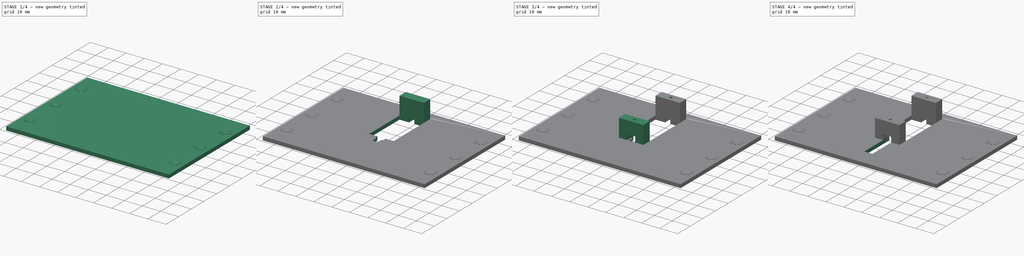
[diagram: build sequence overview — one tinted view per stage of 4, left to right]
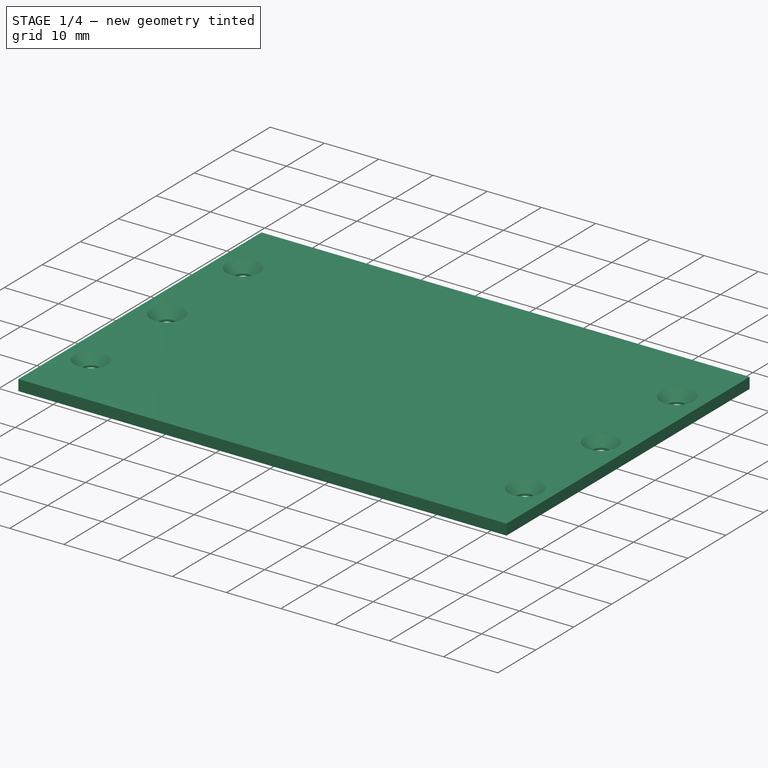
[diagram: stage 1 of 4 — iso view after this stage's code; geometry added in this stage tinted green]
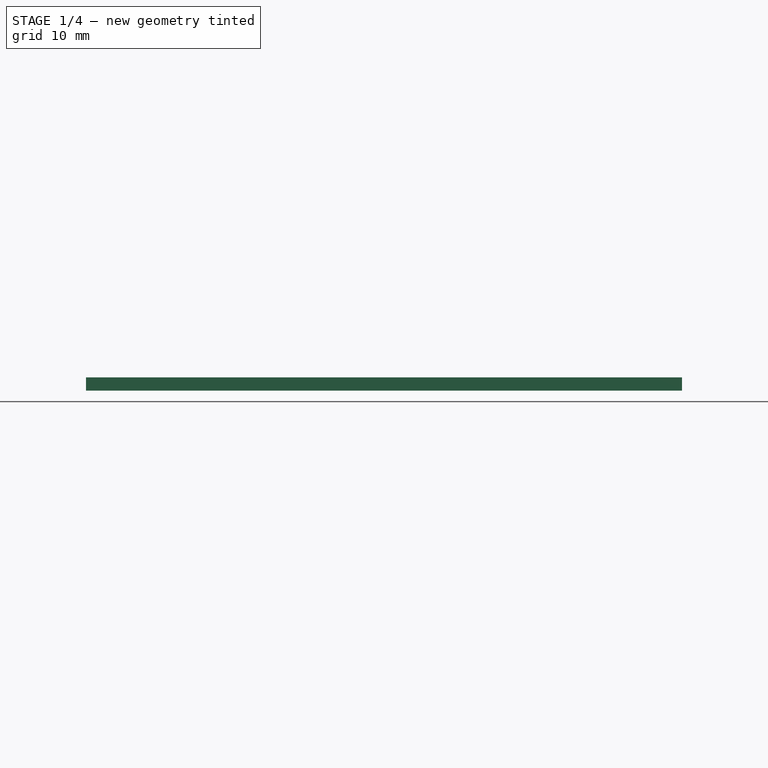
[diagram: stage 1 of 4 — front view after this stage's code; geometry added in this stage tinted green]
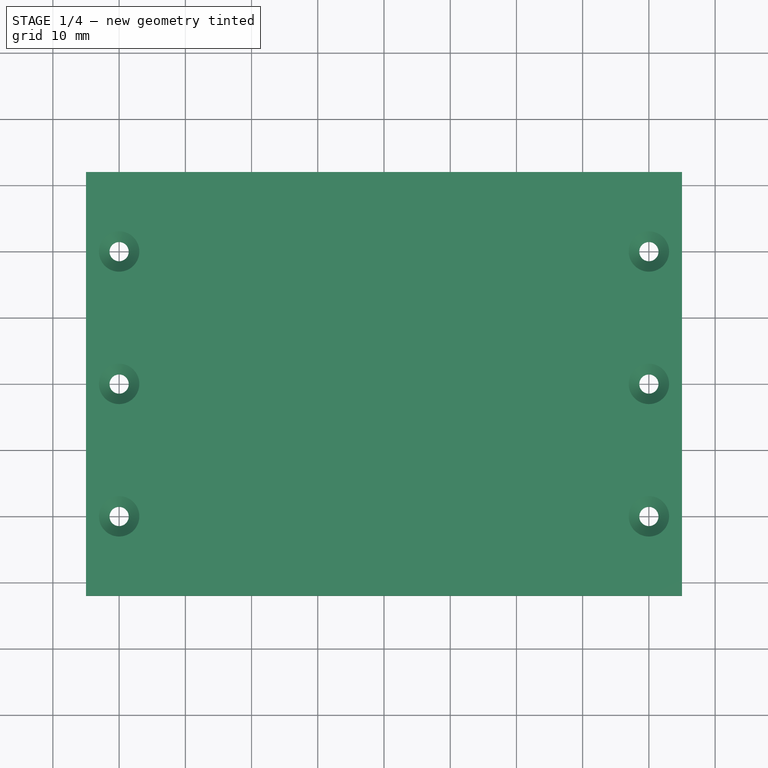
[diagram: stage 1 of 4 — top view after this stage's code; geometry added in this stage tinted green]
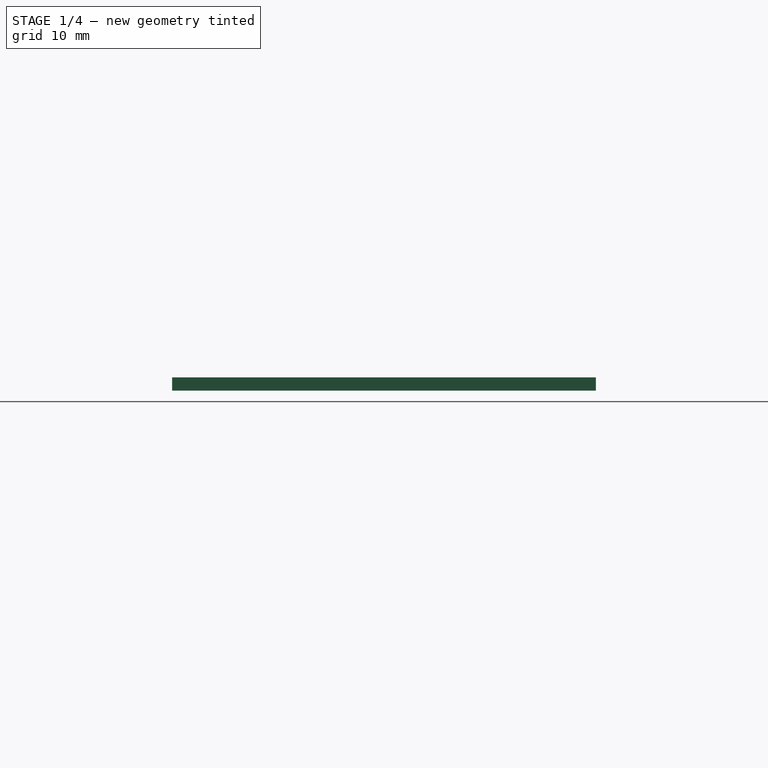
[diagram: stage 1 of 4 — right view after this stage's code; geometry added in this stage tinted green]
FCSTD DOCUMENT  (FreeCAD 0.21R33771 (Git))
Label: NerfPlate
License: All rights reserved
LicenseURL: http://en.wikipedia.org/wiki/All_rights_reserved
objects: Sketcher::SketchObject×8, PartDesign::Pad×3, PartDesign::Pocket×3, PartDesign::Hole×2, App::DocumentObjectGroupPython×1, App::Link×1, PartDesign::Fillet×1, PartDesign::Body×1
note: 27 computed .brp shape members not serialized (recipe doc carries the construction recipe); baked Part::Feature solids carry a one-line shape summary decoded from their .brp
EXTERNAL_REF file=attachment_mounting_plate.FCStd obj=Spreadsheet

FEATURE [App::DocumentObjectGroupPython] ExplodedAssembly  # scripted group (container) (typed FeaturePython)
  AnimationStep = 0
  CurrentTrajectory = 0
  InAnimation = false
  RemoveAllTrajectories = false
  ResetAnimation = false
FEATURE [App::Link] Link  label="attachment_sheet"
  LinkedObject = -> <external attachment_mounting_plate.FCStd>#Spreadsheet
FEATURE [Sketcher::SketchObject] Sketch  label="BasePlateSketch"
  FullyConstrained = true
  MapMode = 5
  Support = -> [XY_Plane]
  expr: Constraints[10] = <<attachment_sheet>>.plate_height
  expr: Constraints[9] = <<attachment_sheet>>.plate_width
  sketch-geometry (4):
    g0: LineSegment StartX=-45 StartY=32 StartZ=0 EndX=45 EndY=32 EndZ=0
    g1: LineSegment StartX=45 StartY=32 StartZ=0 EndX=45 EndY=-32 EndZ=0
    g2: LineSegment StartX=45 StartY=-32 StartZ=0 EndX=-45 EndY=-32 EndZ=0
    g3: LineSegment StartX=-45 StartY=-32 StartZ=0 EndX=-45 EndY=32 EndZ=0
  constraints (11):
    c: Coincident(g0,g1)
    c: Coincident(g1,g2)
    c: Coincident(g2,g3)
    c: Coincident(g3,g0)
    c: Horizontal(g0)
    c: Horizontal(g2)
    c: Vertical(g1)
    c: Vertical(g3)
    c: Symmetric(g0,g1,g-1)
    c: DistanceX(g0,g0) = 90
    c: DistanceY(g1,g1) = 64
FEATURE [PartDesign::Pad] Pad  label="Baseplate"
  Direction = (0,0,1)
  Length = 2
  Length2 = 10
  Profile = -> Sketch
  ReferenceAxis = -> Sketch [N_Axis]
  Type = 0
FEATURE [Sketcher::SketchObject] Sketch001  label="SideHolesSketch"
  FullyConstrained = true
  MapMode = 5
  Placement = pos=(0,0,2) rot=(0,0,1;0rad)
  Support = -> [Pad]
  expr: Constraints[4] = <<attachment_sheet>>.side_bolt_to_centre
  expr: Constraints[6] = <<attachment_sheet>>.side_bolt_distance
  sketch-geometry (12):
    g0: GeomPoint X=-40 Y=20 Z=0
    g1: GeomPoint X=-40 Y=0 Z=0
    g2: GeomPoint X=-40 Y=-20 Z=0
    g3: GeomPoint X=40 Y=20 Z=0
    g4: GeomPoint X=40 Y=0 Z=0
    g5: GeomPoint X=40 Y=-20 Z=0
    g6: Circle CenterX=-40 CenterY=20 CenterZ=0 NormalX=0 NormalY=0 NormalZ=1 AngleXU=0 Radius=1.25
    g7: Circle CenterX=-40 CenterY=0 CenterZ=0 NormalX=0 NormalY=0 NormalZ=1 AngleXU=0 Radius=1.25
    g8: Circle CenterX=-40 CenterY=-20 CenterZ=0 NormalX=0 NormalY=0 NormalZ=1 AngleXU=0 Radius=1.25
    g9: Circle CenterX=40 CenterY=20 CenterZ=0 NormalX=0 NormalY=0 NormalZ=1 AngleXU=0 Radius=1.25
    g10: Circle CenterX=40 CenterY=0 CenterZ=0 NormalX=0 NormalY=0 NormalZ=1 AngleXU=0 Radius=1.25
    g11: Circle CenterX=40 CenterY=-20 CenterZ=0 NormalX=0 NormalY=0 NormalZ=1 AngleXU=0 Radius=1.25
  constraints (20):
    c: PointOnObject(g4,g-1)
    c: Symmetric(g2,g0,g1)
    c: Symmetric(g5,g3,g4)
    c: Symmetric(g4,g1,g-1)
    c: DistanceX(g-1,g4) = 40
    c: Vertical(g5,g3)
    c: DistanceY(g5,g4) = 20
    c: Symmetric(g2,g5,g-2)
    c: Coincident(g6,g0)
    c: Coincident(g7,g1)
    c: Coincident(g8,g2)
    c: Coincident(g9,g3)
    c: Coincident(g10,g4)
    c: Coincident(g11,g5)
    c: Equal(g11,g10)
    c: Equal(g10,g9)
    c: Equal(g9,g6)
    c: Equal(g6,g7)
    c: Equal(g7,g8)
    c: Diameter(g10) = 2.5
FEATURE [PartDesign::Hole] Hole  label="SideHoles"
  BaseFeature = -> Pad
  CustomThreadClearance = 0
  Depth = 25
  DepthType = 0
  Diameter = 2.9
  DrillForDepth = false
  DrillPoint = 1
  DrillPointAngle = 118
  HoleCutCountersinkAngle = 90
  HoleCutCustomValues = false
  HoleCutDepth = 0
  HoleCutDiameter = 6.1
  HoleCutType = 2
  ModelThread = false
  Profile = -> Sketch001
  Tapered = false
  TaperedAngle = 90
  ThreadClass = 0
  ThreadDepth = 25
  ThreadDepthType = 0
  ThreadDirection = 0
  ThreadFit = 0
  ThreadSize = 8
  ThreadType = 1
  Threaded = false
  UseCustomThreadClearance = false
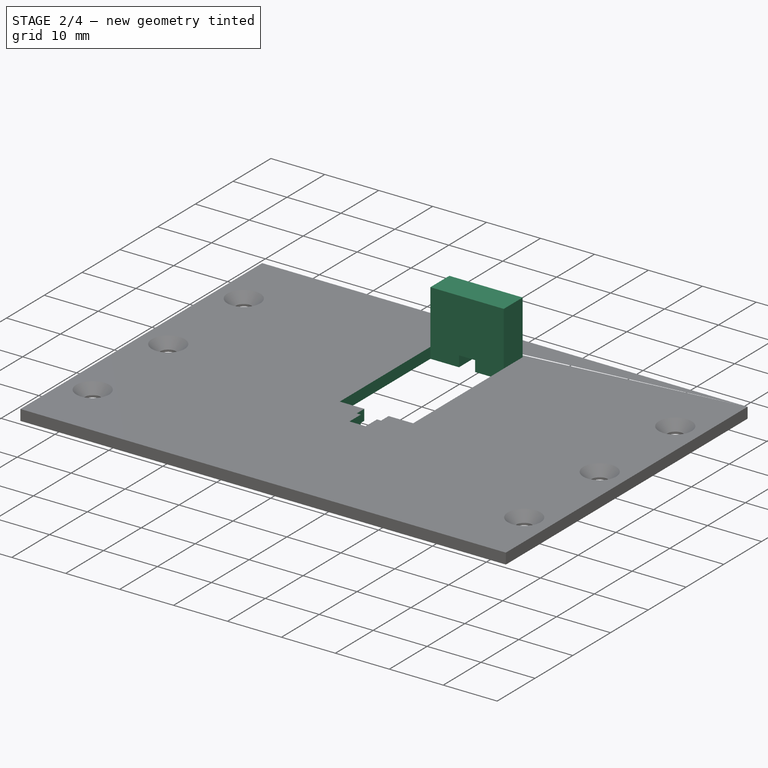
[diagram: stage 2 of 4 — iso view after this stage's code; geometry added in this stage tinted green]
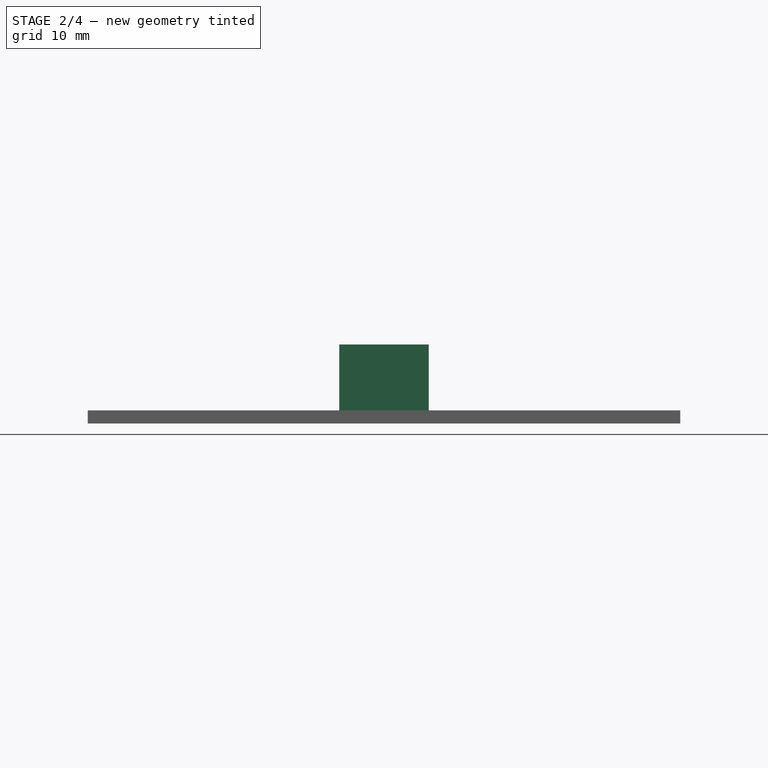
[diagram: stage 2 of 4 — front view after this stage's code; geometry added in this stage tinted green]
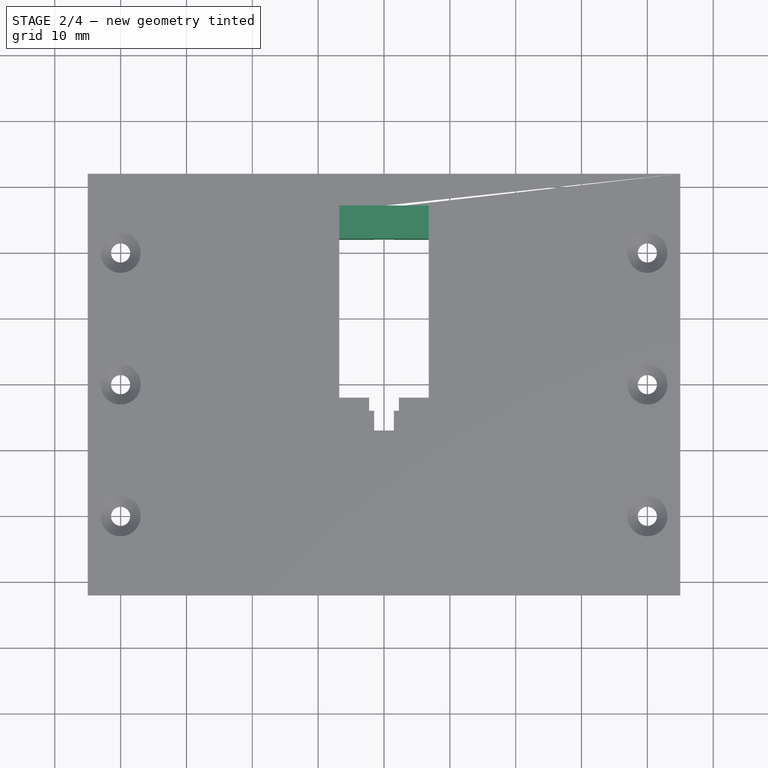
[diagram: stage 2 of 4 — top view after this stage's code; geometry added in this stage tinted green]
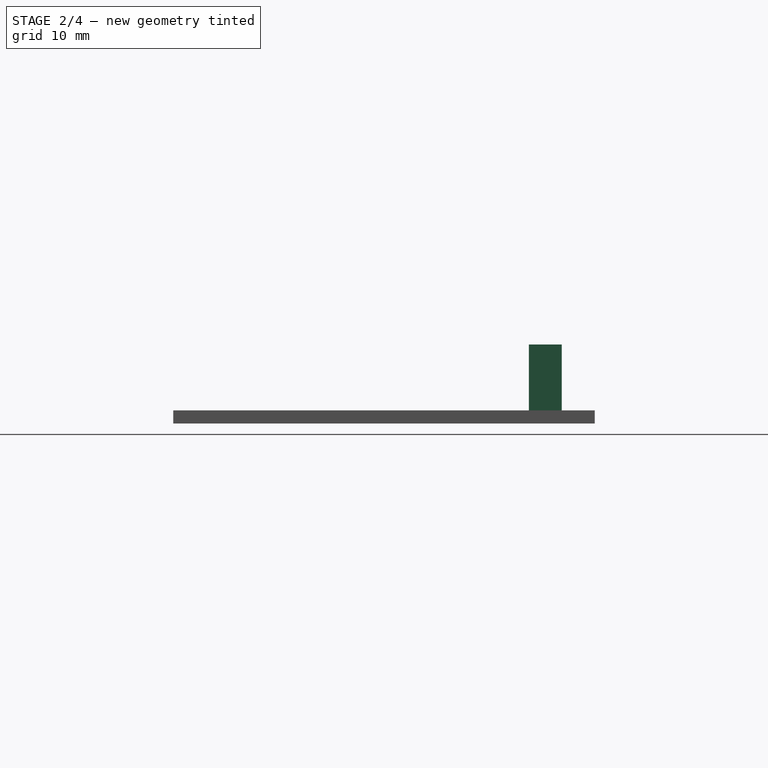
[diagram: stage 2 of 4 — right view after this stage's code; geometry added in this stage tinted green]
FEATURE [Sketcher::SketchObject] Sketch002  label="ServoPocketSketch"
  FullyConstrained = true
  MapMode = 5
  Placement = pos=(0,0,2) rot=(0,0,1;0rad)
  Support = -> [Hole]
  expr: Constraints[34] = <<attachment_sheet>>.servo_depth
  expr: Constraints[35] = <<attachment_sheet>>.servo_width
  expr: Constraints[37] = <<attachment_sheet>>.servo_tab_width
  expr: Constraints[38] = <<attachment_sheet>>.servo_tab_depth
  expr: Constraints[39] = <<attachment_sheet>>.servo_tab_depth
  expr: Constraints[40] = <<attachment_sheet>>.servo_motor_cable_width
  expr: Constraints[41] = <<attachment_sheet>>.servo_motor_cable_thickness
  sketch-geometry (16):
    g0: LineSegment StartX=-6.8 StartY=22 StartZ=0 EndX=-1.5 EndY=22 EndZ=0
    g1: LineSegment StartX=6.8 StartY=22 StartZ=0 EndX=6.8 EndY=-2 EndZ=0
    g2: LineSegment StartX=6.8 StartY=-2 StartZ=0 EndX=2.25 EndY=-2 EndZ=0
    g3: LineSegment StartX=-6.8 StartY=-2 StartZ=0 EndX=-6.8 EndY=22 EndZ=0
    g4: LineSegment StartX=2.25 StartY=-2 StartZ=0 EndX=2.25 EndY=-4 EndZ=0
    g5: LineSegment StartX=2.25 StartY=-4 StartZ=0 EndX=1.5 EndY=-4 EndZ=0
    g6: LineSegment StartX=-2.25 StartY=-4 StartZ=0 EndX=-2.25 EndY=-2 EndZ=0
    g7: LineSegment StartX=1.5 StartY=-4 StartZ=0 EndX=1.5 EndY=-7 EndZ=0
    g8: LineSegment StartX=1.5 StartY=-7 StartZ=0 EndX=-1.5 EndY=-7 EndZ=0
    g9: LineSegment StartX=-1.5 StartY=-7 StartZ=0 EndX=-1.5 EndY=-4 EndZ=0
    g10: LineSegment StartX=-1.5 StartY=-4 StartZ=0 EndX=-2.25 EndY=-4 EndZ=0
    g11: LineSegment StartX=-2.25 StartY=-2 StartZ=0 EndX=-6.8 EndY=-2 EndZ=0
    g12: LineSegment StartX=1.5 StartY=22 StartZ=0 EndX=1.5 EndY=27 EndZ=0
    g13: LineSegment StartX=1.5 StartY=27 StartZ=0 EndX=-1.5 EndY=27 EndZ=0
    g14: LineSegment StartX=-1.5 StartY=27 StartZ=0 EndX=-1.5 EndY=22 EndZ=0
    g15: LineSegment StartX=1.5 StartY=22 StartZ=0 EndX=6.8 EndY=22 EndZ=0
  constraints (43):
    c: Coincident(g15,g1)
    c: Coincident(g1,g2)
    c: Coincident(g11,g3)
    c: Coincident(g3,g0)
    c: Horizontal(g0)
    c: Horizontal(g2)
    c: Vertical(g1)
    c: Vertical(g3)
    c: Coincident(g4,g5)
    c: Coincident(g10,g6)
    c: Horizontal(g5)
    c: Vertical(g4)
    c: Vertical(g6)
    c: Coincident(g7,g8)
    c: Coincident(g8,g9)
    c: Horizontal(g8)
    c: Vertical(g7)
    c: Vertical(g9)
    c: Coincident(g12,g13)
    c: Coincident(g13,g14)
    c: Horizontal(g13)
    c: Vertical(g12)
    c: Symmetric(g1,g0,g-2)
    c: Coincident(g6,g11)
    c: Horizontal(g11)
    c: Horizontal(g6,g2)
    c: Coincident(g2,g4)
    c: Coincident(g5,g7)
    c: Coincident(g10,g9)
    c: Symmetric(g5,g9,g-2)
    c: Symmetric(g4,g6,g-2)
    c: Coincident(g14,g0)
    c: Coincident(g12,g15)
    c: Symmetric(g0,g12,g-2)
    c: DistanceY(g3,g3) = 24
    c: DistanceX(g0,g1) = 13.6
    c: Tangent(g14,g9)
    c: DistanceX(g13,g13) = 3
    c: DistanceY(g14,g14) = 5
    c: DistanceY(g8,g3) = 5
    c: DistanceX(g6,g2) = 4.5
    c: DistanceY(g4,g4) = 2
    c: DistanceY(g-1,g0) = 22
FEATURE [PartDesign::Pocket] Pocket  label="ServoPocket"
  BaseFeature = -> Hole
  Direction = (0,0,-1)
  Length = 5
  Length2 = 5
  Profile = -> Sketch002
  ReferenceAxis = -> Sketch002 [N_Axis]
  Type = 1
FEATURE [Sketcher::SketchObject] Sketch003  label="ServoRearSupportSketch"
  ExternalGeometry = -> [Pocket]
  FullyConstrained = true
  MapMode = 5
  Placement = pos=(0,0,2) rot=(0,0,1;0rad)
  Support = -> [Pocket]
  sketch-geometry (4):
    g0: LineSegment StartX=-6.8 StartY=22 StartZ=0 EndX=6.8 EndY=22 EndZ=0
    g1: LineSegment StartX=6.8 StartY=22 StartZ=0 EndX=6.8 EndY=27 EndZ=0
    g2: LineSegment StartX=6.8 StartY=27 StartZ=0 EndX=-6.8 EndY=27 EndZ=0
    g3: LineSegment StartX=-6.8 StartY=27 StartZ=0 EndX=-6.8 EndY=22 EndZ=0
  constraints (10):
    c: Coincident(g0,g1)
    c: Coincident(g1,g2)
    c: Coincident(g2,g3)
    c: Coincident(g3,g0)
    c: Horizontal(g0)
    c: Horizontal(g2)
    c: Vertical(g3)
    c: Coincident(g0,g-3)
    c: Tangent(g1,g-4)
    c: DistanceY(g3,g3) = 5
FEATURE [PartDesign::Pad] Pad001  label="ServoRearSupport"
  BaseFeature = -> Pocket
  Direction = (0,0,1)
  Length = 10
  Length2 = 10
  Profile = -> Sketch003
  ReferenceAxis = -> Sketch003 [N_Axis]
  Refine = true
  Type = 0
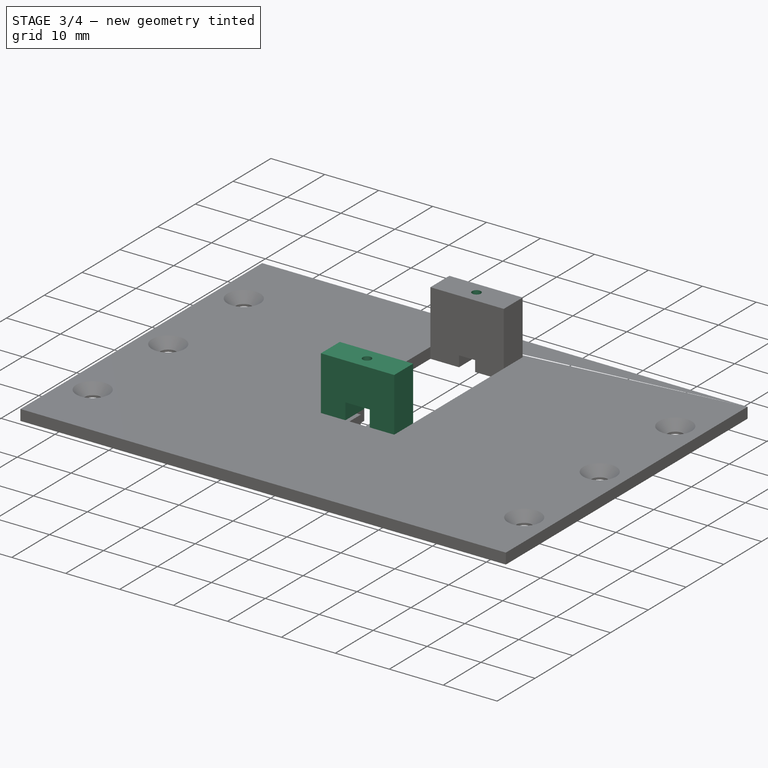
[diagram: stage 3 of 4 — iso view after this stage's code; geometry added in this stage tinted green]
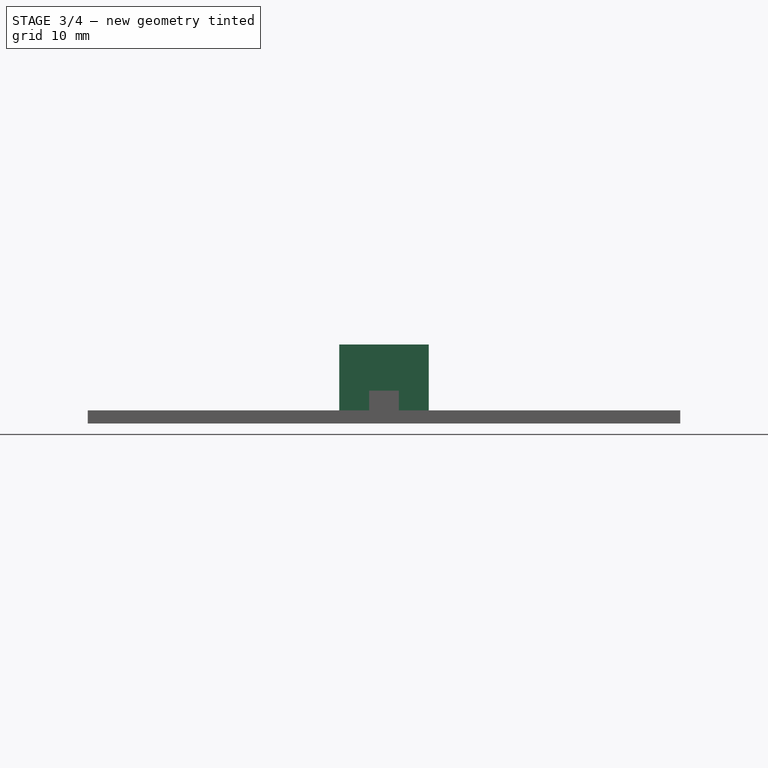
[diagram: stage 3 of 4 — front view after this stage's code; geometry added in this stage tinted green]
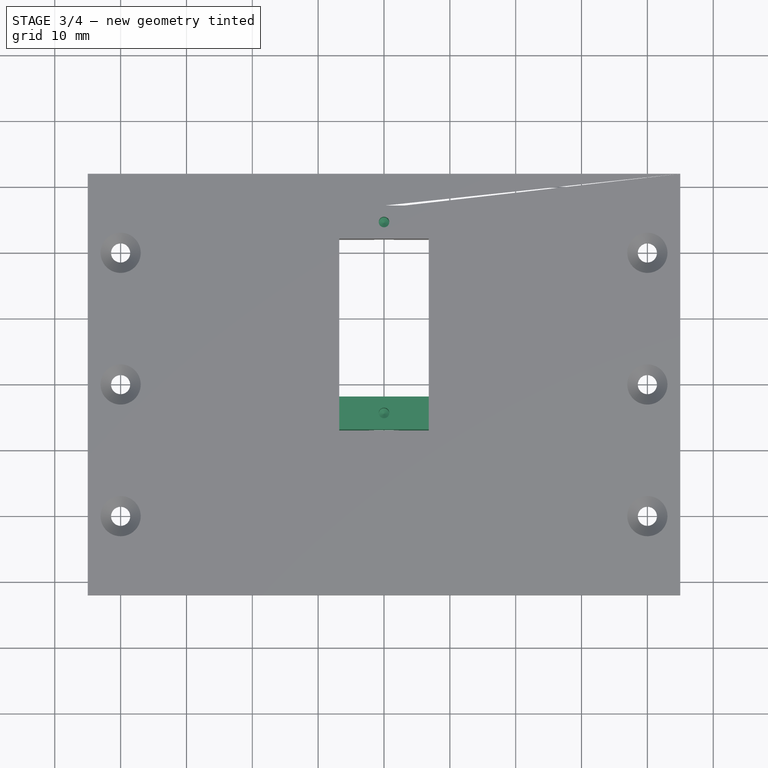
[diagram: stage 3 of 4 — top view after this stage's code; geometry added in this stage tinted green]
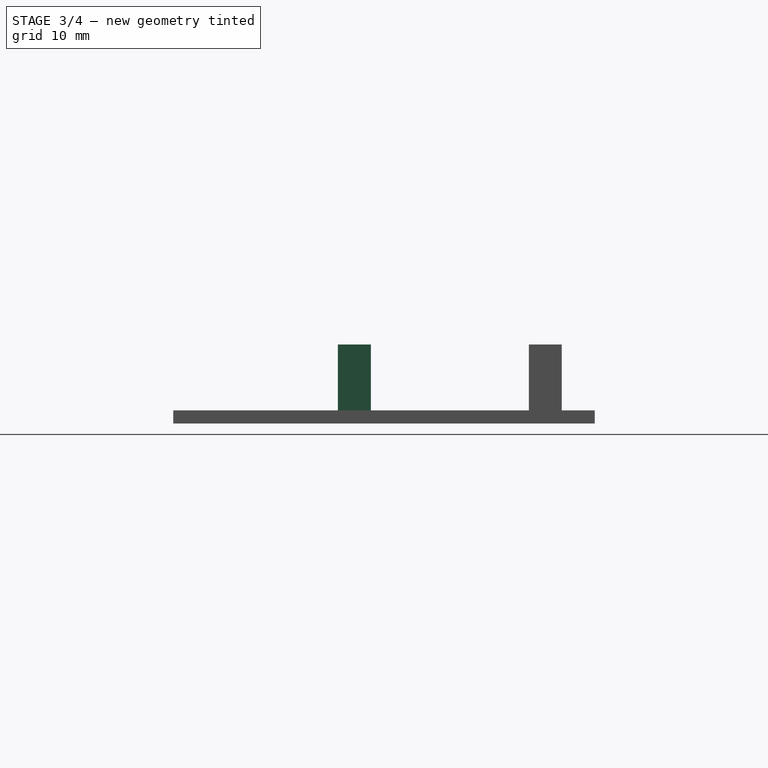
[diagram: stage 3 of 4 — right view after this stage's code; geometry added in this stage tinted green]
FEATURE [Sketcher::SketchObject] Sketch004  label="ServoFrontSupportSketch"
  ExternalGeometry = -> [Pad001]
  FullyConstrained = true
  MapMode = 5
  Placement = pos=(0,0,2) rot=(0,0,1;0rad)
  Support = -> [Pad001]
  sketch-geometry (4):
    g0: LineSegment StartX=-6.8 StartY=-2 StartZ=0 EndX=6.8 EndY=-2 EndZ=0
    g1: LineSegment StartX=6.8 StartY=-2 StartZ=0 EndX=6.8 EndY=-7 EndZ=0
    g2: LineSegment StartX=6.8 StartY=-7 StartZ=0 EndX=-6.8 EndY=-7 EndZ=0
    g3: LineSegment StartX=-6.8 StartY=-7 StartZ=0 EndX=-6.8 EndY=-2 EndZ=0
  constraints (10):
    c: Coincident(g0,g1)
    c: Coincident(g1,g2)
    c: Coincident(g2,g3)
    c: Coincident(g3,g0)
    c: Horizontal(g2)
    c: Vertical(g1)
    c: Vertical(g3)
    c: Coincident(g0,g-3)
    c: Coincident(g0,g-4)
    c: DistanceY(g1,g1) = 5
FEATURE [PartDesign::Pad] Pad002  label="ServoFrontSupport"
  BaseFeature = -> Pad001
  Direction = (0,0,1)
  Length = 10
  Length2 = 10
  Profile = -> Sketch004
  ReferenceAxis = -> Sketch004 [N_Axis]
  Refine = true
  Type = 3
  UpToFace = -> Pad001 [Face40]
FEATURE [Sketcher::SketchObject] Sketch005  label="ServoCableHoleSketch"
  ExternalGeometry = -> [Pad001]
  FullyConstrained = true
  MapMode = 5
  Placement = pos=(0,0,2) rot=(0,0,1;0rad)
  Support = -> [Pad001]
  sketch-geometry (4):
    g0: LineSegment StartX=-2.25 StartY=-2 StartZ=0 EndX=2.25 EndY=-2 EndZ=0
    g1: LineSegment StartX=2.25 StartY=-2 StartZ=0 EndX=2.25 EndY=-7 EndZ=0
    g2: LineSegment StartX=2.25 StartY=-7 StartZ=0 EndX=-2.25 EndY=-7 EndZ=0
    g3: LineSegment StartX=-2.25 StartY=-7 StartZ=0 EndX=-2.25 EndY=-2 EndZ=0
  constraints (9):
    c: Coincident(g0,g1)
    c: Coincident(g1,g2)
    c: Coincident(g2,g3)
    c: Coincident(g3,g0)
    c: Horizontal(g0)
    c: Vertical(g3)
    c: Coincident(g0,g-3)
    c: Tangent(g1,g-4)
    c: Tangent(g2,g-5)
FEATURE [PartDesign::Pocket] Pocket001  label="ServoCableHole"
  BaseFeature = -> Pad002
  Direction = (0,0,-1)
  Length = 3
  Length2 = 5
  Profile = -> Sketch005
  ReferenceAxis = -> Sketch005 [N_Axis]
  Reversed = true
  Type = 0
FEATURE [Sketcher::SketchObject] Sketch006  label="ServoMountHolesSketch"
  ExternalGeometry = -> [Pocket001]
  FullyConstrained = true
  MapMode = 5
  Placement = pos=(0,0,12) rot=(0,0,1;0rad)
  Support = -> [Pocket001]
  sketch-geometry (3):
    g0: Circle CenterX=0 CenterY=24.5 CenterZ=0 NormalX=0 NormalY=0 NormalZ=1 AngleXU=0 Radius=0.75
    g1: Circle CenterX=0 CenterY=-4.5 CenterZ=0 NormalX=0 NormalY=0 NormalZ=1 AngleXU=0 Radius=0.75
    g2: LineSegment StartX=-6.8 StartY=10 StartZ=0 EndX=6.8 EndY=10 EndZ=0
  constraints (8):
    c: PointOnObject(g0,g-2)
    c: PointOnObject(g1,g-2)
    c: Symmetric(g-3,g-4,g2)
    c: Vertical(g-4,g2)
    c: Symmetric(g0,g1,g2)
    c: Equal(g0,g1)
    c: DistanceY(g1,g0) = 29
    c: Diameter(g0) = 1.5
FEATURE [PartDesign::Hole] Hole001  label="ServoMountHoles"
  BaseFeature = -> Pocket001
  CustomThreadClearance = 0
  Depth = 6
  DepthType = 0
  Diameter = 1.6
  DrillForDepth = false
  DrillPoint = 1
  DrillPointAngle = 118
  HoleCutCountersinkAngle = 90
  HoleCutCustomValues = false
  HoleCutDepth = 0
  HoleCutDiameter = 6.1
  HoleCutType = 0
  ModelThread = false
  Profile = -> Sketch006
  Tapered = false
  TaperedAngle = 90
  ThreadClass = 0
  ThreadDepth = 6
  ThreadDepthType = 0
  ThreadDirection = 0
  ThreadFit = 0
  ThreadSize = 6
  ThreadType = 1
  Threaded = true
  UseCustomThreadClearance = false
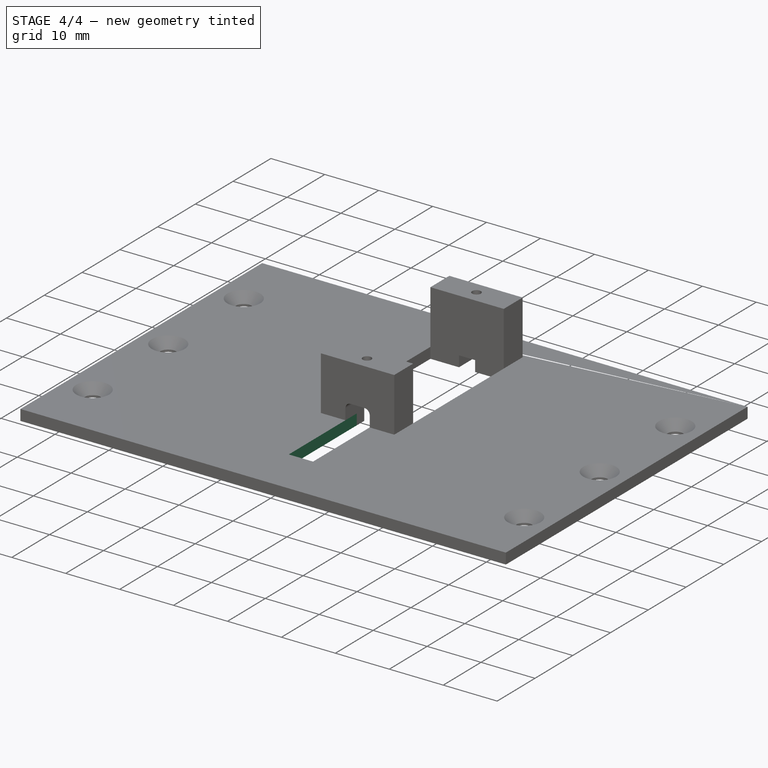
[diagram: stage 4 of 4 — iso view after this stage's code; geometry added in this stage tinted green]
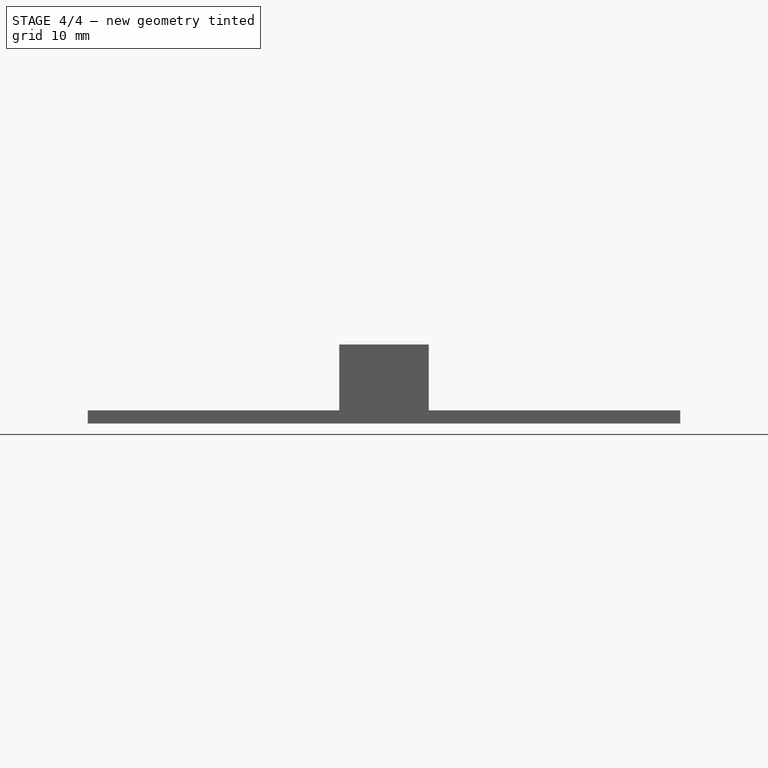
[diagram: stage 4 of 4 — front view after this stage's code; geometry added in this stage tinted green]
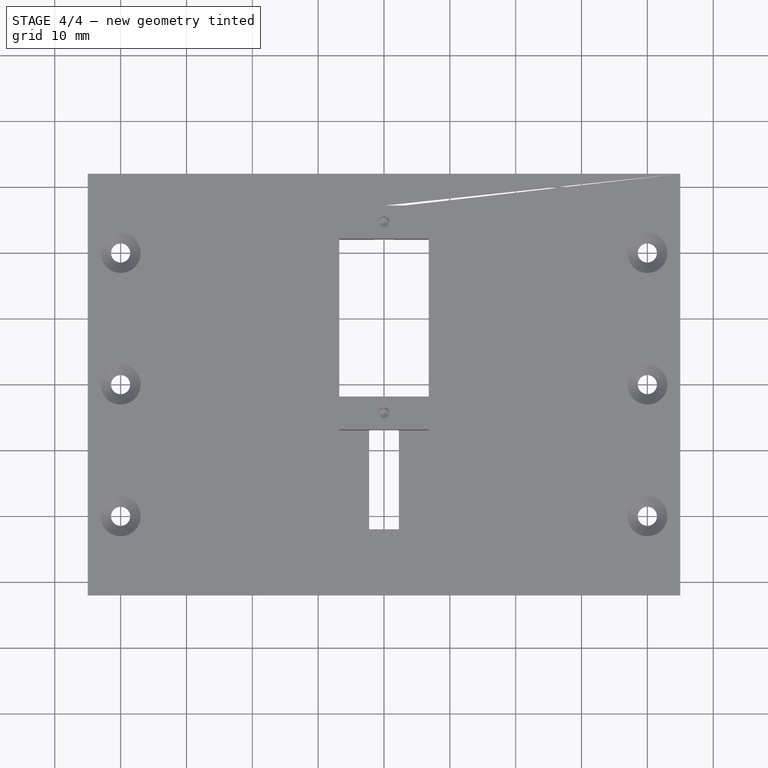
[diagram: stage 4 of 4 — top view after this stage's code; geometry added in this stage tinted green]
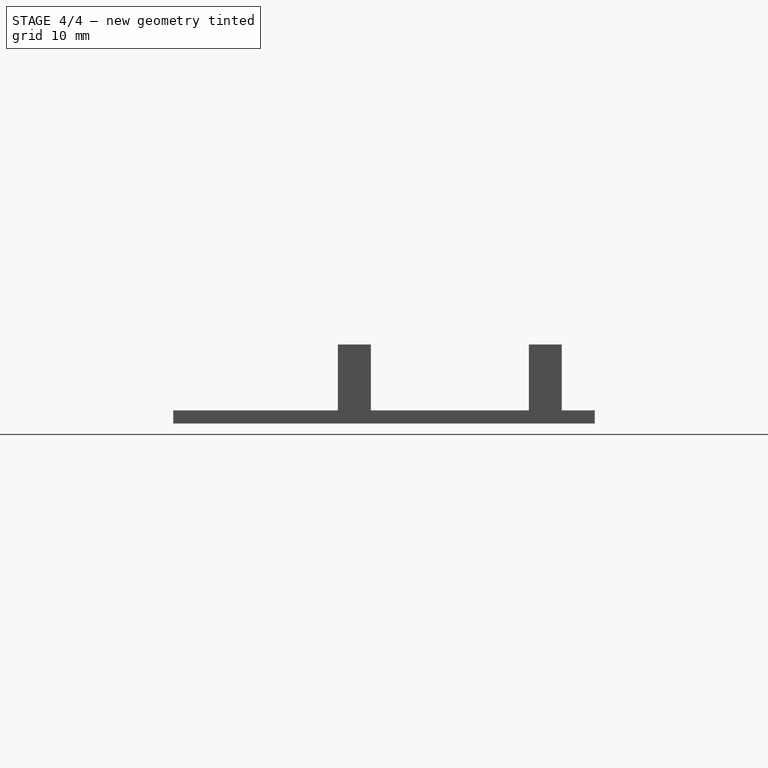
[diagram: stage 4 of 4 — right view after this stage's code; geometry added in this stage tinted green]
FEATURE [PartDesign::Fillet] Fillet
  Base = -> Hole001 [Edge126,Edge127]
  BaseFeature = -> Hole001
  Radius = 1
  SupportTransform = false
  UseAllEdges = false
FEATURE [Sketcher::SketchObject] Sketch007
  ExternalGeometry = -> [Pocket]
  FullyConstrained = true
  MapMode = 5
  Placement = pos=(0,0,2) rot=(0,0,1;0rad)
  Support = -> [Fillet]
  sketch-geometry (4):
    g0: LineSegment StartX=-2.25 StartY=-2 StartZ=0 EndX=2.25 EndY=-2 EndZ=0
    g1: LineSegment StartX=2.25 StartY=-2 StartZ=0 EndX=2.25 EndY=-22 EndZ=0
    g2: LineSegment StartX=2.25 StartY=-22 StartZ=0 EndX=-2.25 EndY=-22 EndZ=0
    g3: LineSegment StartX=-2.25 StartY=-22 StartZ=0 EndX=-2.25 EndY=-2 EndZ=0
  constraints (10):
    c: Coincident(g0,g1)
    c: Coincident(g1,g2)
    c: Coincident(g2,g3)
    c: Coincident(g3,g0)
    c: Horizontal(g0)
    c: Horizontal(g2)
    c: Vertical(g3)
    c: Coincident(g0,g-3)
    c: Tangent(g1,g-4)
    c: DistanceY(g-5,g2) = 10
FEATURE [PartDesign::Pocket] Pocket002
  BaseFeature = -> Fillet
  Direction = (0,0,-1)
  Length = 5
  Length2 = 5
  Profile = -> Sketch007
  ReferenceAxis = -> Sketch007 [N_Axis]
  Type = 1
FEATURE [PartDesign::Body] Body  label="NerfPlateBody"
  Group = -> [Sketch,Pad,Sketch001,Hole,Sketch002,Pocket,Sketch003,Pad001,Sketch004,Pad002,Sketch005,Pocket001,Sketch006,Hole001,Fillet,Sketch007,Pocket002]
  Origin = -> Origin
  Tip = -> Pocket002
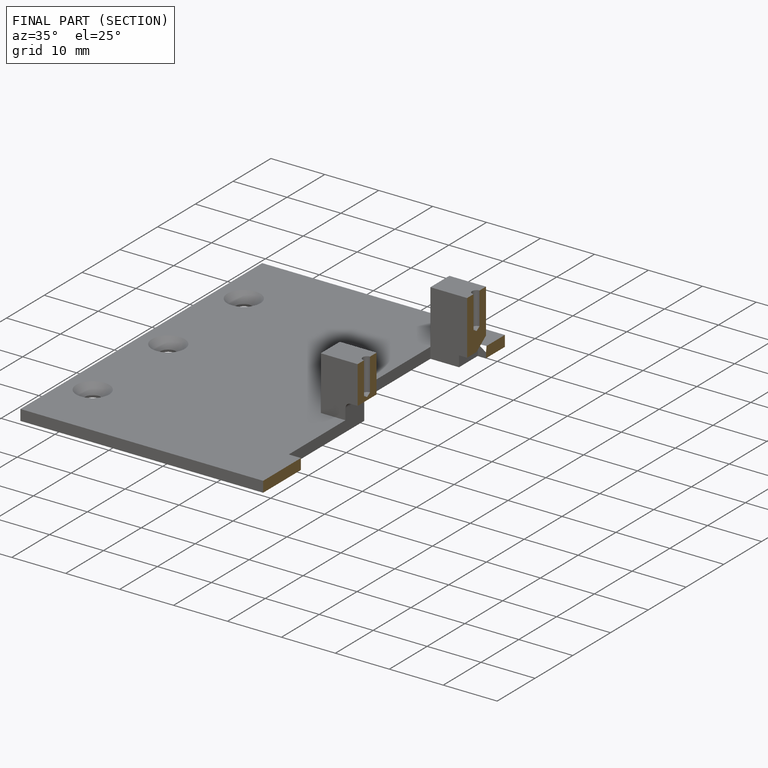
[diagram: finished part — half-section view (interior)]
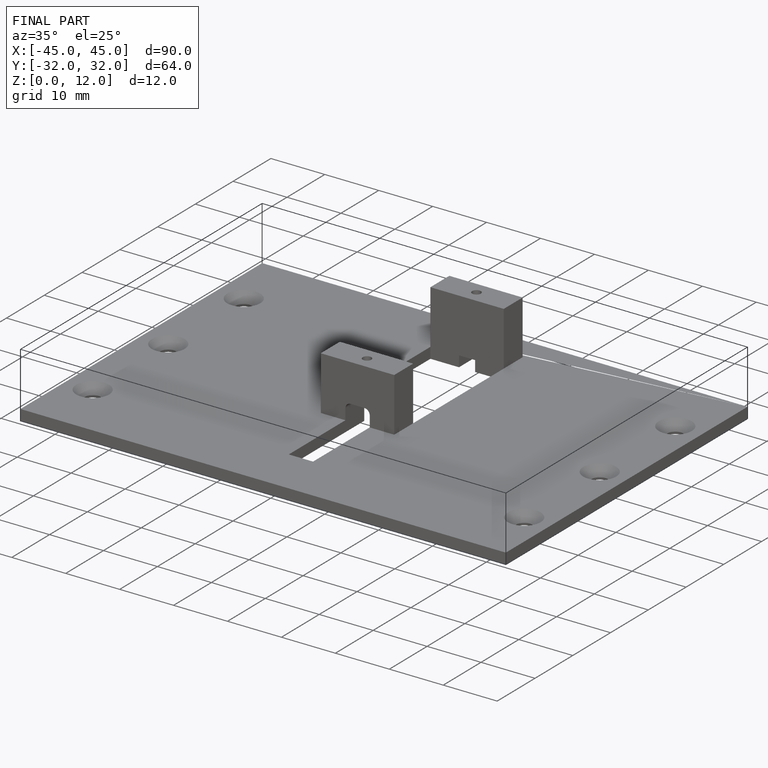
[diagram: finished part — iso view with bounding-box wireframe]
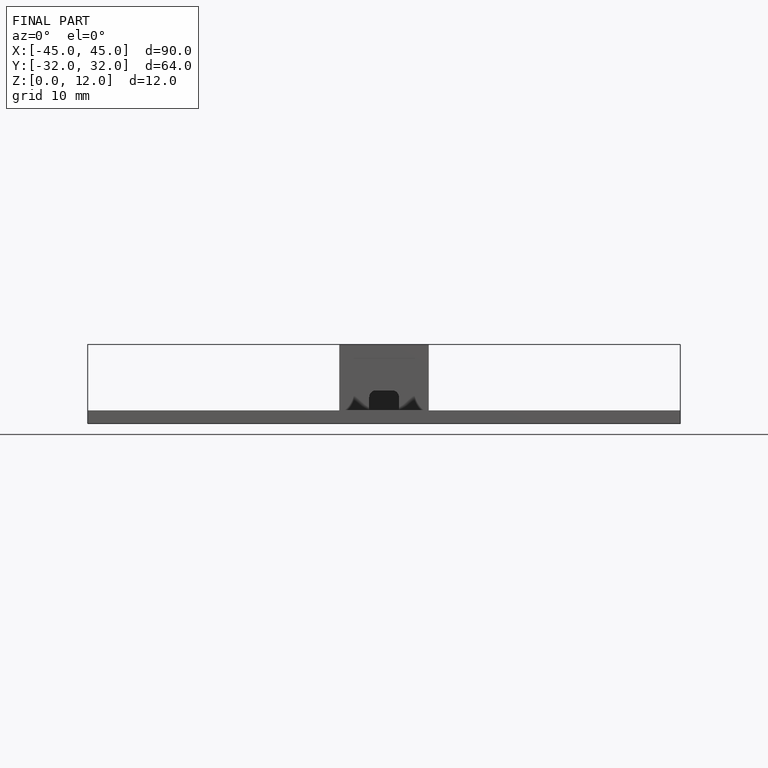
[diagram: finished part — front view with bounding-box wireframe]
